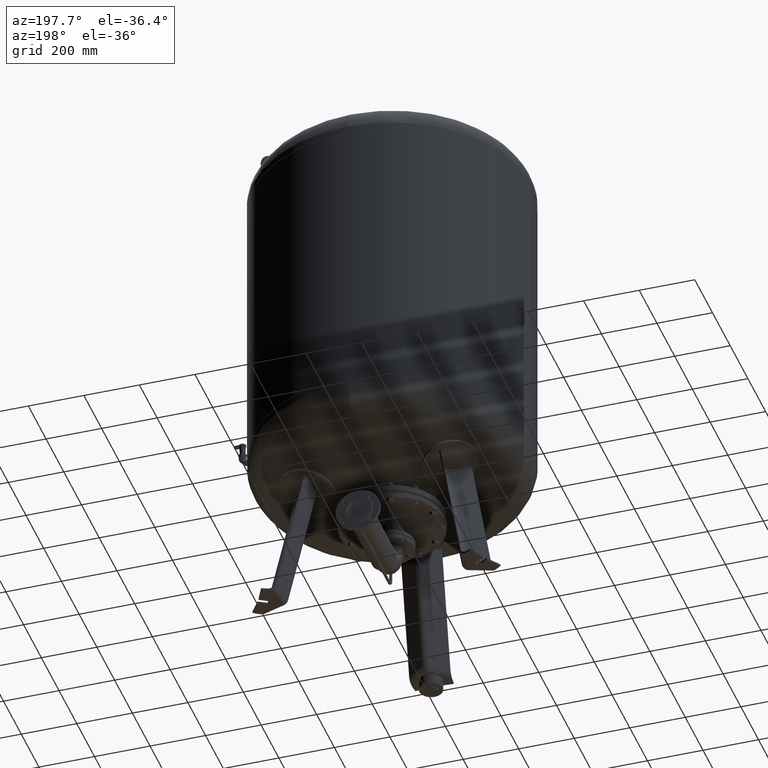
[diagram: clean part render]
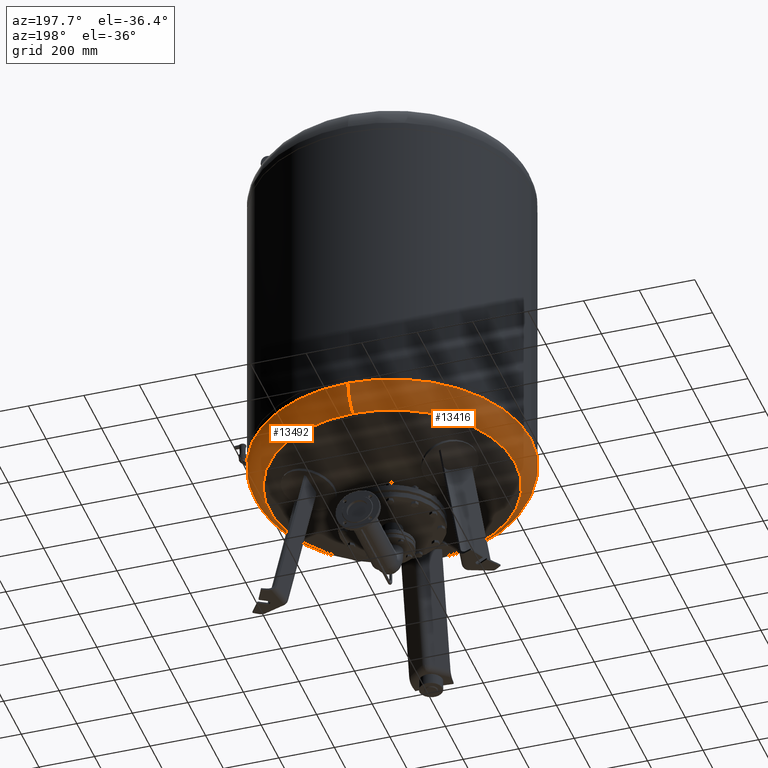
[diagram: same view with one multi-face feature highlighted, each face labeled with its STEP entity id]
A machine part, auxiliary view. The highlighted faces form ONE feature: a constant-radius fillet chain: 2 tangent blend faces with common blend radius 100.6 mm. The faces share edges in the B-rep.
Their STEP definitions:
[1] entity #13492 (Torus):
#13338=CARTESIAN_POINT('',(500.0,2.569315E-014,653.455355072719500));
#13339=VERTEX_POINT('',#13338);
#13346=CARTESIAN_POINT('',(-6.123032E-014,499.999999999999940,653.455355072719610));
#13347=VERTEX_POINT('',#13346);
#13348=CARTESIAN_POINT('',(-2.595210E-014,-3.553717E-014,653.455355072719500));
#13349=DIRECTION('',(0.0,0.0,1.0));
#13350=DIRECTION('',(-1.0,0.0,0.0));
#13351=AXIS2_PLACEMENT_3D('',#13348,#13349,#13350);
#13352=CIRCLE('',#13351,500.0);
#13353=EDGE_CURVE('',#13339,#13347,#13352,.T.);
#13370=CARTESIAN_POINT('',(3.381269E-030,-500.000000000000060,653.455355072719390));
#13371=VERTEX_POINT('',#13370);
#13372=CARTESIAN_POINT('',(1.211146E-014,-443.777777777777600,563.172616747466120));
#13373=VERTEX_POINT('',#13372);
#13374=CARTESIAN_POINT('',(0.0,-399.399999999999980,653.455355072719500));
#13375=DIRECTION('',(1.0,0.0,0.0));
#13376=DIRECTION('',(0.0,-1.0,0.0));
#13377=AXIS2_PLACEMENT_3D('',#13374,#13375,#13376);
#13378=CIRCLE('',#13377,100.600000000000010);
#13379=EDGE_CURVE('',#13371,#13373,#13378,.T.);
#13389=CARTESIAN_POINT('',(-4.223385E-014,443.777777777777600,563.172616747466350));
#13390=VERTEX_POINT('',#13389);
#13391=CARTESIAN_POINT('',(-4.891078E-014,399.399999999999860,653.455355072719730));
#13392=DIRECTION('',(-1.0,0.0,0.0));
#13393=DIRECTION('',(0.0,1.0,0.0));
#13394=AXIS2_PLACEMENT_3D('',#13391,#13392,#13393);
#13395=CIRCLE('',#13394,100.600000000000010);
#13396=EDGE_CURVE('',#13347,#13390,#13395,.T.);
#13424=CARTESIAN_POINT('',(-1.384064E-014,-1.895250E-014,563.172616747466240));
#13425=DIRECTION('',(0.0,0.0,1.0));
#13426=DIRECTION('',(-1.0,0.0,0.0));
#13427=AXIS2_PLACEMENT_3D('',#13424,#13425,#13426);
#13428=CIRCLE('',#13427,443.777777777777600);
#13429=EDGE_CURVE('',#13373,#13390,#13428,.T.);
#13474=CARTESIAN_POINT('',(0.0,-3.553717E-014,653.455355072719610));
#13475=DIRECTION('',(-1.341503E-016,-1.836970E-016,1.0));
#13476=DIRECTION('',(0.0,-1.0,0.0));
#13477=AXIS2_PLACEMENT_3D('',#13474,#13475,#13476);
#13478=TOROIDAL_SURFACE('',#13477,399.399999999999920,100.600000000000010);
#13479=ORIENTED_EDGE('',*,*,#13379,.T.);
#13480=ORIENTED_EDGE('',*,*,#13429,.T.);
#13481=ORIENTED_EDGE('',*,*,#13396,.F.);
#13482=ORIENTED_EDGE('',*,*,#13353,.F.);
#13483=CARTESIAN_POINT('',(-2.595210E-014,-3.553717E-014,653.455355072719500));
#13484=DIRECTION('',(0.0,0.0,1.0));
#13485=DIRECTION('',(-1.0,0.0,0.0));
#13486=AXIS2_PLACEMENT_3D('',#13483,#13484,#13485);
#13487=CIRCLE('',#13486,500.0);
#13488=EDGE_CURVE('',#13371,#13339,#13487,.T.);
#13489=ORIENTED_EDGE('',*,*,#13488,.F.);
#13490=EDGE_LOOP('',(#13479,#13480,#13481,#13482,#13489));
#13491=FACE_OUTER_BOUND('',#13490,.T.);
#13492=ADVANCED_FACE('',(#13491),#13478,.T.);
[2] entity #13416 (Torus):
#13321=CARTESIAN_POINT('',(-500.0,-3.553717E-014,653.455355072719390));
#13322=VERTEX_POINT('',#13321);
#13346=CARTESIAN_POINT('',(-6.123032E-014,499.999999999999940,653.455355072719610));
#13347=VERTEX_POINT('',#13346);
#13355=CARTESIAN_POINT('',(-2.595210E-014,-3.553717E-014,653.455355072719500));
#13356=DIRECTION('',(0.0,0.0,1.0));
#13357=DIRECTION('',(-1.0,0.0,0.0));
#13358=AXIS2_PLACEMENT_3D('',#13355,#13356,#13357);
#13359=CIRCLE('',#13358,500.0);
#13360=EDGE_CURVE('',#13347,#13322,#13359,.T.);
#13365=CARTESIAN_POINT('',(0.0,-3.553717E-014,653.455355072719610));
#13366=DIRECTION('',(-1.341503E-016,-1.836970E-016,1.0));
#13367=DIRECTION('',(0.0,-1.0,0.0));
#13368=AXIS2_PLACEMENT_3D('',#13365,#13366,#13367);
#13369=TOROIDAL_SURFACE('',#13368,399.399999999999920,100.600000000000010);
#13370=CARTESIAN_POINT('',(3.381269E-030,-500.000000000000060,653.455355072719390));
#13371=VERTEX_POINT('',#13370);
#13372=CARTESIAN_POINT('',(1.211146E-014,-443.777777777777600,563.172616747466120));
#13373=VERTEX_POINT('',#13372);
#13374=CARTESIAN_POINT('',(0.0,-399.399999999999980,653.455355072719500));
#13375=DIRECTION('',(1.0,0.0,0.0));
#13376=DIRECTION('',(0.0,-1.0,0.0));
#13377=AXIS2_PLACEMENT_3D('',#13374,#13375,#13376);
#13378=CIRCLE('',#13377,100.600000000000010);
#13379=EDGE_CURVE('',#13371,#13373,#13378,.T.);
#13380=ORIENTED_EDGE('',*,*,#13379,.F.);
#13381=CARTESIAN_POINT('',(-2.595210E-014,-3.553717E-014,653.455355072719500));
#13382=DIRECTION('',(0.0,0.0,1.0));
#13383=DIRECTION('',(-1.0,0.0,0.0));
#13384=AXIS2_PLACEMENT_3D('',#13381,#13382,#13383);
#13385=CIRCLE('',#13384,500.0);
#13386=EDGE_CURVE('',#13322,#13371,#13385,.T.);
#13387=ORIENTED_EDGE('',*,*,#13386,.F.);
#13388=ORIENTED_EDGE('',*,*,#13360,.F.);
#13389=CARTESIAN_POINT('',(-4.223385E-014,443.777777777777600,563.172616747466350));
#13390=VERTEX_POINT('',#13389);
#13391=CARTESIAN_POINT('',(-4.891078E-014,399.399999999999860,653.455355072719730));
#13392=DIRECTION('',(-1.0,0.0,0.0));
#13393=DIRECTION('',(0.0,1.0,0.0));
#13394=AXIS2_PLACEMENT_3D('',#13391,#13392,#13393);
#13395=CIRCLE('',#13394,100.600000000000010);
#13396=EDGE_CURVE('',#13347,#13390,#13395,.T.);
#13397=ORIENTED_EDGE('',*,*,#13396,.T.);
#13398=CARTESIAN_POINT('',(-443.777777777777600,-1.895250E-014,563.172616747466240));
#13399=VERTEX_POINT('',#13398);
#13400=CARTESIAN_POINT('',(-1.384064E-014,-1.895250E-014,563.172616747466240));
#13401=DIRECTION('',(0.0,0.0,1.0));
#13402=DIRECTION('',(-1.0,0.0,0.0));
#13403=AXIS2_PLACEMENT_3D('',#13400,#13401,#13402);
#13404=CIRCLE('',#13403,443.777777777777600);
#13405=EDGE_CURVE('',#13390,#13399,#13404,.T.);
#13406=ORIENTED_EDGE('',*,*,#13405,.T.);
#13407=CARTESIAN_POINT('',(-1.384064E-014,-1.895250E-014,563.172616747466240));
#13408=DIRECTION('',(0.0,0.0,1.0));
#13409=DIRECTION('',(-1.0,0.0,0.0));
#13410=AXIS2_PLACEMENT_3D('',#13407,#13408,#13409);
#13411=CIRCLE('',#13410,443.777777777777600);
#13412=EDGE_CURVE('',#13399,#13373,#13411,.T.);
#13413=ORIENTED_EDGE('',*,*,#13412,.T.);
#13414=EDGE_LOOP('',(#13380,#13387,#13388,#13397,#13406,#13413));
#13415=FACE_OUTER_BOUND('',#13414,.T.);
#13416=ADVANCED_FACE('',(#13415),#13369,.T.);